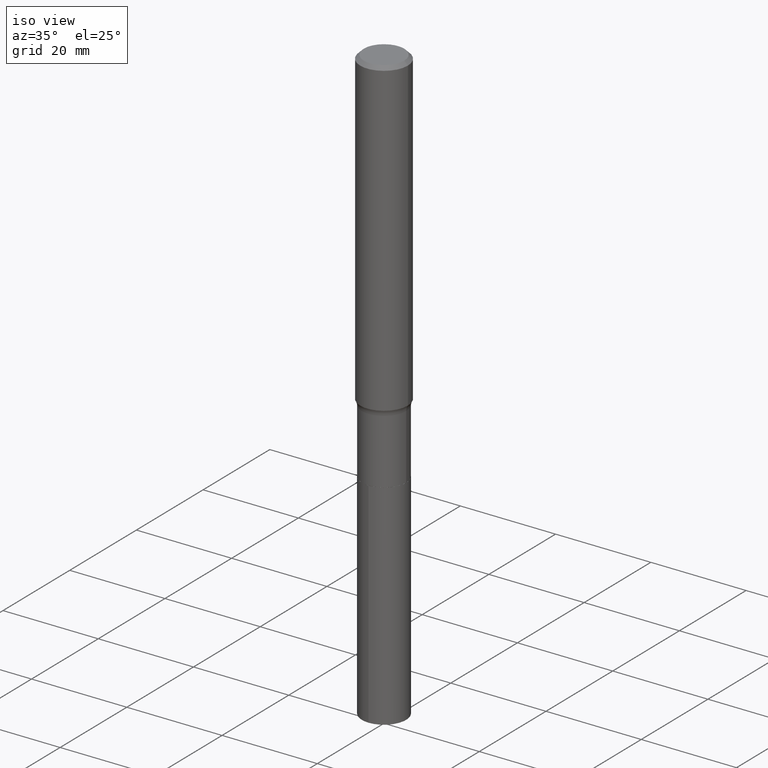
[diagram: clean part render]
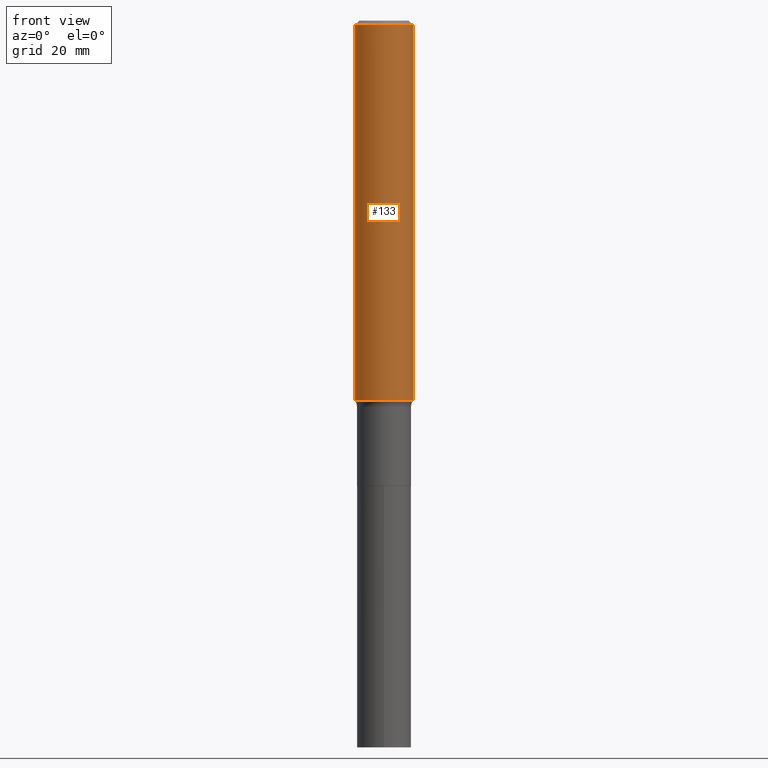
[diagram: tour spotlight — one face highlighted and labeled with its STEP entity id]
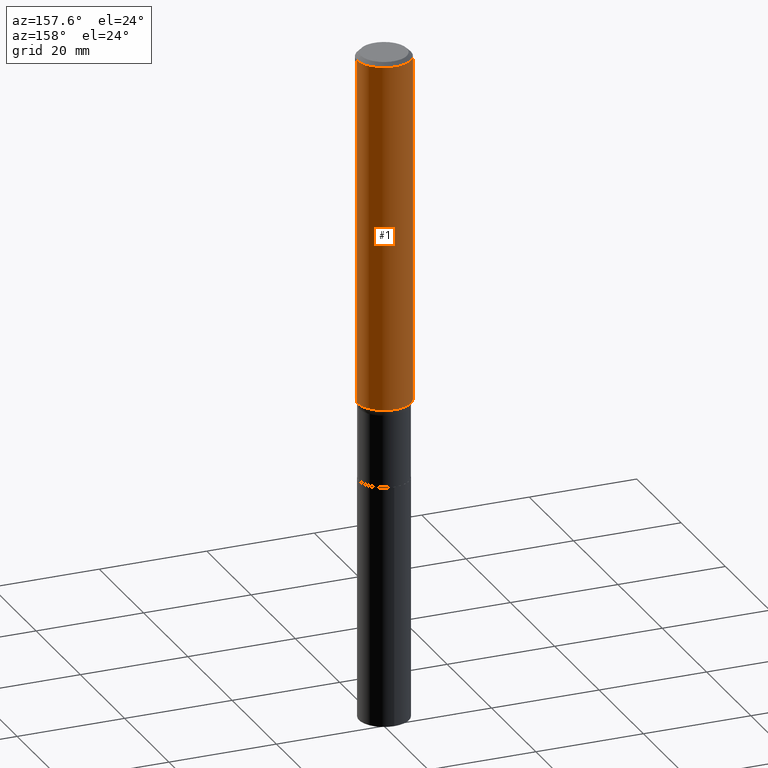
[diagram: tour spotlight — one face highlighted and labeled with its STEP entity id]
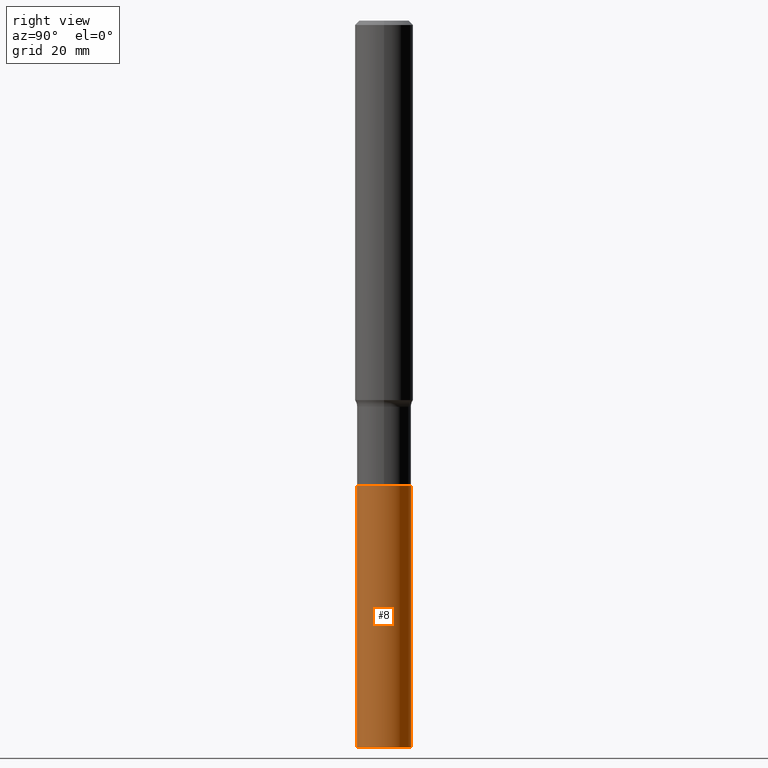
[diagram: tour spotlight — one face highlighted and labeled with its STEP entity id]
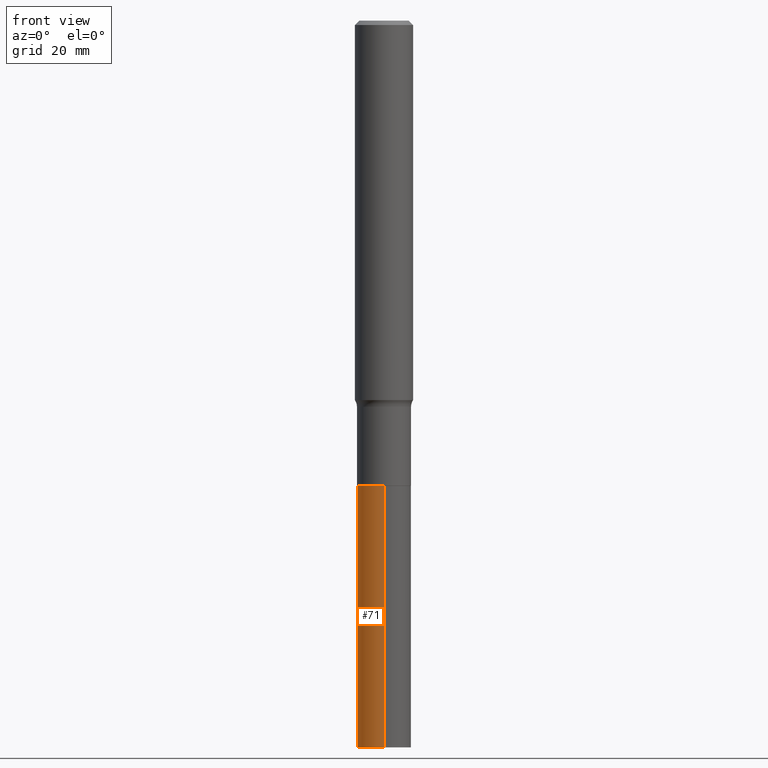
[diagram: tour spotlight — one face highlighted and labeled with its STEP entity id]
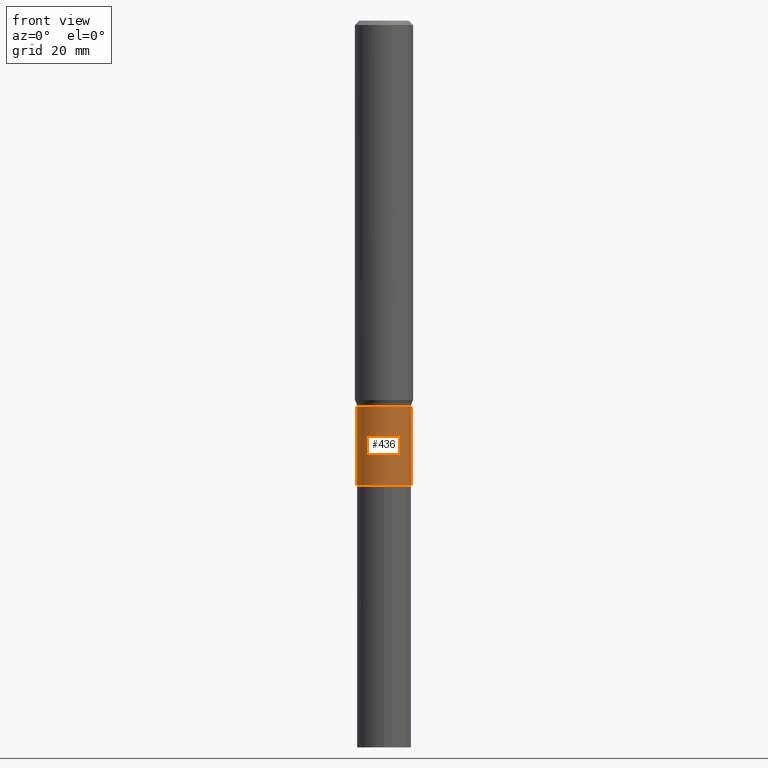
[diagram: tour spotlight — one face highlighted and labeled with its STEP entity id]
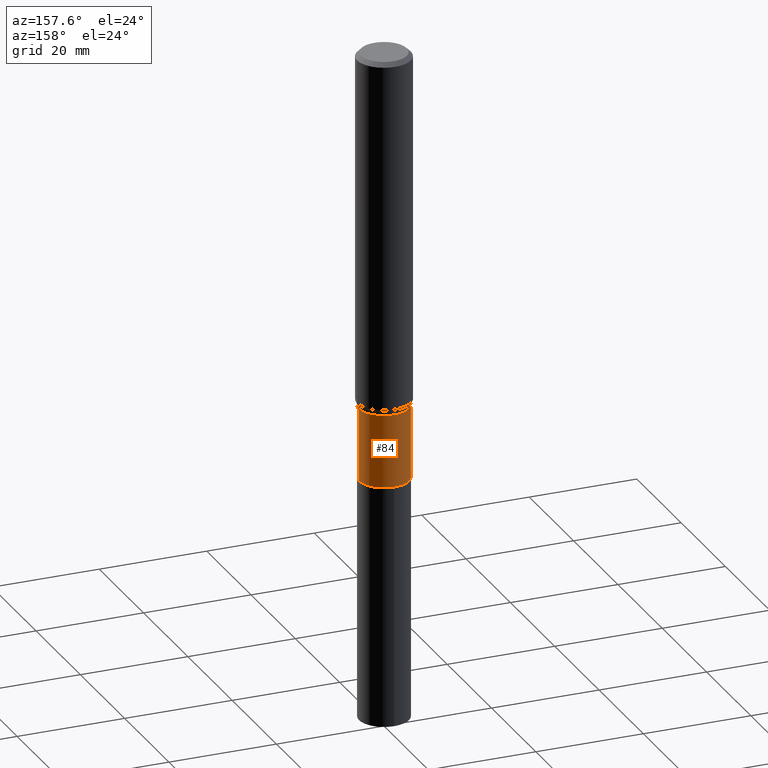
[diagram: tour spotlight — one face highlighted and labeled with its STEP entity id]
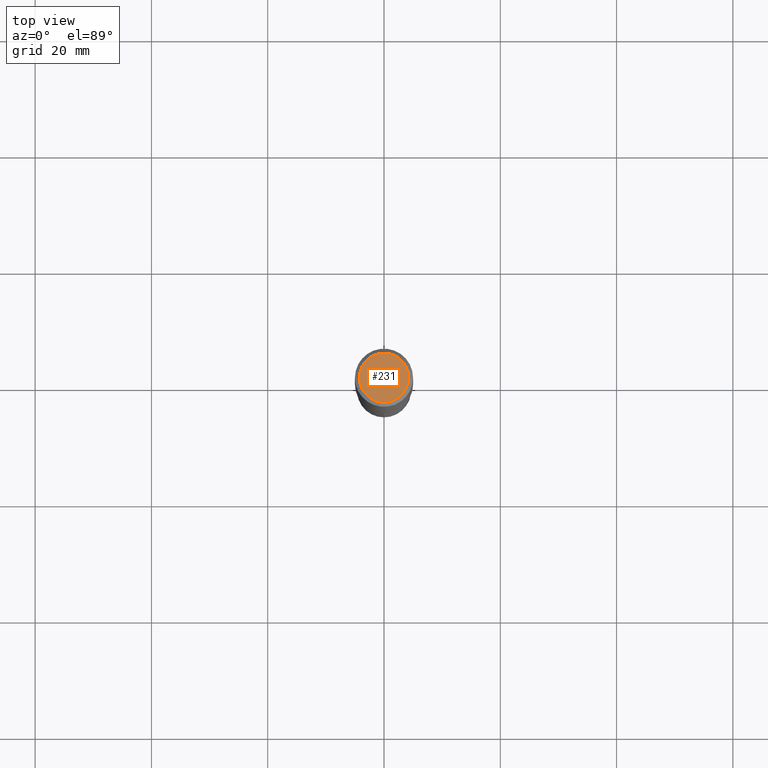
[diagram: tour spotlight — one face highlighted and labeled with its STEP entity id]
A machine part: a face-by-face anatomy tour. The part has 16 B-rep faces; the first image is the clean iso view, then the 7 largest visible faces are spotlighted one at a time (largest first), each with its STEP entity span.

Face 1 — front view, entity #133. In plain terms, the highlighted cylindrical surface (edge-blend (fillet) strip) has radius 5 mm, axis along (-0, 0, 1).
Definition (entity closure, byte-faithful):
#9 = CIRCLE ( 'NONE', #21, 0.1968500000000000250 ) ;
#11 = DIRECTION ( 'NONE',  ( -2.445468806185136877E-29, 3.491481338843145188E-15, 1.000000000000000000 ) ) ;
#16 = CYLINDRICAL_SURFACE ( 'NONE', #139, 0.1968500000000001915 ) ;
#19 = CIRCLE ( 'NONE', #55, 0.1968500000000003580 ) ;
#21 = AXIS2_PLACEMENT_3D ( 'NONE', #448, #376, #103 ) ;
#35 = EDGE_CURVE ( 'NONE', #461, #199, #179, .T. ) ;
#55 = AXIS2_PLACEMENT_3D ( 'NONE', #281, #163, #388 ) ;
#61 = EDGE_CURVE ( 'NONE', #126, #130, #299, .T. ) ;
#64 = DIRECTION ( 'NONE',  ( 1.000000000000000000, -6.982962677686266711E-15, 4.876176775795935793E-29 ) ) ;
#76 = CARTESIAN_POINT ( 'NONE',  ( -0.1968500000000000250, -3.138494505646045746E-15, -0.02952750000000017166 ) ) ;
#95 = CARTESIAN_POINT ( 'NONE',  ( 0.000000000000000000, 0.000000000000000000, 0.000000000000000000 ) ) ;
#103 = DIRECTION ( 'NONE',  ( 1.000000000000000000, -6.982962677686265922E-15, 0.000000000000000000 ) ) ;
#112 = EDGE_CURVE ( 'NONE', #199, #130, #9, .T. ) ;
#126 = VERTEX_POINT ( 'NONE', #438 ) ;
#130 = VERTEX_POINT ( 'NONE', #304 ) ;
#133 = ADVANCED_FACE ( 'NONE', ( #142 ), #16, .T. ) ;
#139 = AXIS2_PLACEMENT_3D ( 'NONE', #95, #396, #64 ) ;
#142 = FACE_OUTER_BOUND ( 'NONE', #276, .T. ) ;
#160 = ORIENTED_EDGE ( 'NONE', *, *, #35, .F. ) ;
#163 = DIRECTION ( 'NONE',  ( -2.445468806185136597E-29, 3.491481338843145583E-15, 1.000000000000000000 ) ) ;
#166 = CARTESIAN_POINT ( 'NONE',  ( -0.1968500000000003858, -7.572597671403159960E-15, -2.569482742737338121 ) ) ;
#179 = LINE ( 'NONE', #337, #250 ) ;
#183 = ORIENTED_EDGE ( 'NONE', *, *, #61, .T. ) ;
#199 = VERTEX_POINT ( 'NONE', #76 ) ;
#214 = ORIENTED_EDGE ( 'NONE', *, *, #387, .T. ) ;
#250 = VECTOR ( 'NONE', #11, 39.37007874015748143 ) ;
#274 = CARTESIAN_POINT ( 'NONE',  ( 0.1968500000000001915, -1.374596203102542989E-15, 9.598753983154309266E-30 ) ) ;
#276 = EDGE_LOOP ( 'NONE', ( #160, #214, #183, #284 ) ) ;
#281 = CARTESIAN_POINT ( 'NONE',  ( 6.283589895395188928E-29, -8.971301046746920115E-15, -2.569482742737338121 ) ) ;
#284 = ORIENTED_EDGE ( 'NONE', *, *, #112, .F. ) ;
#299 = LINE ( 'NONE', #274, #429 ) ;
#304 = CARTESIAN_POINT ( 'NONE',  ( 0.1968500000000000250, -1.477690918335233294E-15, -0.02952750000000017166 ) ) ;
#337 = CARTESIAN_POINT ( 'NONE',  ( -0.1968500000000001915, 1.398703375343758577E-15, -9.682923725166790684E-30 ) ) ;
#376 = DIRECTION ( 'NONE',  ( -2.445468806185136597E-29, 3.491481338843145583E-15, 1.000000000000000000 ) ) ;
#387 = EDGE_CURVE ( 'NONE', #461, #126, #19, .T. ) ;
#388 = DIRECTION ( 'NONE',  ( 1.000000000000000000, -6.982962677686265922E-15, 0.000000000000000000 ) ) ;
#396 = DIRECTION ( 'NONE',  ( -2.445468806185136597E-29, 3.491481338843145583E-15, 1.000000000000000000 ) ) ;
#429 = VECTOR ( 'NONE', #453, 39.37007874015748143 ) ;
#438 = CARTESIAN_POINT ( 'NONE',  ( 0.1968500000000003858, -1.034589724984946488E-14, -2.569482742737338121 ) ) ;
#448 = CARTESIAN_POINT ( 'NONE',  ( 7.220858017463204230E-31, -1.030947152326915870E-16, -0.02952750000000017166 ) ) ;
#453 = DIRECTION ( 'NONE',  ( -2.445468806185136877E-29, 3.491481338843145188E-15, 1.000000000000000000 ) ) ;
#461 = VERTEX_POINT ( 'NONE', #166 ) ;

Face 2 — auxiliary view, entity #1. In plain terms, the highlighted cylindrical surface (edge-blend (fillet) strip) has radius 5 mm, axis along (-0, 0, 1).
Definition (entity closure, byte-faithful):
#1 = ADVANCED_FACE ( 'NONE', ( #260 ), #305, .T. ) ;
#11 = DIRECTION ( 'NONE',  ( -2.445468806185136877E-29, 3.491481338843145188E-15, 1.000000000000000000 ) ) ;
#17 = ORIENTED_EDGE ( 'NONE', *, *, #61, .F. ) ;
#18 = EDGE_CURVE ( 'NONE', #126, #461, #317, .T. ) ;
#35 = EDGE_CURVE ( 'NONE', #461, #199, #179, .T. ) ;
#45 = DIRECTION ( 'NONE',  ( -2.445468806185136597E-29, 3.491481338843145583E-15, 1.000000000000000000 ) ) ;
#61 = EDGE_CURVE ( 'NONE', #126, #130, #299, .T. ) ;
#67 = CARTESIAN_POINT ( 'NONE',  ( 0.000000000000000000, 0.000000000000000000, 0.000000000000000000 ) ) ;
#76 = CARTESIAN_POINT ( 'NONE',  ( -0.1968500000000000250, -3.138494505646045746E-15, -0.02952750000000017166 ) ) ;
#96 = DIRECTION ( 'NONE',  ( 1.000000000000000000, -6.982962677686266711E-15, 4.876176775795935793E-29 ) ) ;
#102 = CARTESIAN_POINT ( 'NONE',  ( 7.220858017463204230E-31, -1.030947152326915870E-16, -0.02952750000000017166 ) ) ;
#115 = AXIS2_PLACEMENT_3D ( 'NONE', #102, #256, #404 ) ;
#120 = AXIS2_PLACEMENT_3D ( 'NONE', #67, #45, #96 ) ;
#126 = VERTEX_POINT ( 'NONE', #438 ) ;
#130 = VERTEX_POINT ( 'NONE', #304 ) ;
#166 = CARTESIAN_POINT ( 'NONE',  ( -0.1968500000000003858, -7.572597671403159960E-15, -2.569482742737338121 ) ) ;
#176 = DIRECTION ( 'NONE',  ( -2.445468806185136597E-29, 3.491481338843145583E-15, 1.000000000000000000 ) ) ;
#179 = LINE ( 'NONE', #337, #250 ) ;
#199 = VERTEX_POINT ( 'NONE', #76 ) ;
#250 = VECTOR ( 'NONE', #11, 39.37007874015748143 ) ;
#256 = DIRECTION ( 'NONE',  ( -2.445468806185136597E-29, 3.491481338843145583E-15, 1.000000000000000000 ) ) ;
#260 = FACE_OUTER_BOUND ( 'NONE', #373, .T. ) ;
#270 = CIRCLE ( 'NONE', #115, 0.1968500000000000250 ) ;
#274 = CARTESIAN_POINT ( 'NONE',  ( 0.1968500000000001915, -1.374596203102542989E-15, 9.598753983154309266E-30 ) ) ;
#279 = ORIENTED_EDGE ( 'NONE', *, *, #18, .T. ) ;
#294 = DIRECTION ( 'NONE',  ( 1.000000000000000000, -6.982962677686265922E-15, 0.000000000000000000 ) ) ;
#299 = LINE ( 'NONE', #274, #429 ) ;
#302 = ORIENTED_EDGE ( 'NONE', *, *, #35, .T. ) ;
#304 = CARTESIAN_POINT ( 'NONE',  ( 0.1968500000000000250, -1.477690918335233294E-15, -0.02952750000000017166 ) ) ;
#305 = CYLINDRICAL_SURFACE ( 'NONE', #120, 0.1968500000000001915 ) ;
#308 = EDGE_CURVE ( 'NONE', #130, #199, #270, .T. ) ;
#317 = CIRCLE ( 'NONE', #346, 0.1968500000000003580 ) ;
#337 = CARTESIAN_POINT ( 'NONE',  ( -0.1968500000000001915, 1.398703375343758577E-15, -9.682923725166790684E-30 ) ) ;
#346 = AXIS2_PLACEMENT_3D ( 'NONE', #439, #176, #294 ) ;
#373 = EDGE_LOOP ( 'NONE', ( #279, #302, #428, #17 ) ) ;
#404 = DIRECTION ( 'NONE',  ( 1.000000000000000000, -6.982962677686265922E-15, 0.000000000000000000 ) ) ;
#428 = ORIENTED_EDGE ( 'NONE', *, *, #308, .F. ) ;
#429 = VECTOR ( 'NONE', #453, 39.37007874015748143 ) ;
#438 = CARTESIAN_POINT ( 'NONE',  ( 0.1968500000000003858, -1.034589724984946488E-14, -2.569482742737338121 ) ) ;
#439 = CARTESIAN_POINT ( 'NONE',  ( 6.283589895395188928E-29, -8.971301046746920115E-15, -2.569482742737338121 ) ) ;
#453 = DIRECTION ( 'NONE',  ( -2.445468806185136877E-29, 3.491481338843145188E-15, 1.000000000000000000 ) ) ;
#461 = VERTEX_POINT ( 'NONE', #166 ) ;

Face 3 — right view, entity #8. In plain terms, the highlighted cylindrical surface (edge-blend (fillet) strip) has radius 4.6495 mm, axis along (-0, 0, 1).
Definition (entity closure, byte-faithful):
#4 = CYLINDRICAL_SURFACE ( 'NONE', #295, 0.1830499999999999905 ) ;
#5 = CARTESIAN_POINT ( 'NONE',  ( 1.203488073211193522E-28, -1.718263413532219501E-14, -4.921300000000000452 ) ) ;
#6 = VERTEX_POINT ( 'NONE', #49 ) ;
#8 = ADVANCED_FACE ( 'NONE', ( #367 ), #4, .T. ) ;
#24 = DIRECTION ( 'NONE',  ( -6.982962677686264344E-15, -1.000000000000000000, 2.984810700534567995E-15 ) ) ;
#47 = CARTESIAN_POINT ( 'NONE',  ( 1.300648477808961733E-15, 0.1830499999999828098, -4.921300000000002228 ) ) ;
#49 = CARTESIAN_POINT ( 'NONE',  ( -1.278231318150350366E-15, -0.1830500000000171434, -4.921299999999999564 ) ) ;
#73 = CIRCLE ( 'NONE', #339, 0.1830499999999999905 ) ;
#87 = ORIENTED_EDGE ( 'NONE', *, *, #197, .T. ) ;
#105 = LINE ( 'NONE', #219, #296 ) ;
#122 = VERTEX_POINT ( 'NONE', #47 ) ;
#136 = DIRECTION ( 'NONE',  ( -2.445466038822281652E-29, 3.491485301864262044E-15, 1.000000000000000000 ) ) ;
#150 = CIRCLE ( 'NONE', #207, 0.1830499999999999905 ) ;
#172 = CARTESIAN_POINT ( 'NONE',  ( 1.300648477808983624E-15, 0.1830499999999889715, -3.149300000000000210 ) ) ;
#173 = CARTESIAN_POINT ( 'NONE',  ( 7.701514911318850358E-29, -1.099572218041871704E-14, -3.149299999999999766 ) ) ;
#197 = EDGE_CURVE ( 'NONE', #122, #255, #312, .T. ) ;
#200 = DIRECTION ( 'NONE',  ( -6.982962677686264344E-15, -1.000000000000000000, 5.969621401069135991E-15 ) ) ;
#207 = AXIS2_PLACEMENT_3D ( 'NONE', #173, #435, #24 ) ;
#217 = ORIENTED_EDGE ( 'NONE', *, *, #316, .F. ) ;
#219 = CARTESIAN_POINT ( 'NONE',  ( -1.278231318150393753E-15, -0.1830500000000109817, -3.149299999999999322 ) ) ;
#225 = VERTEX_POINT ( 'NONE', #363 ) ;
#249 = EDGE_LOOP ( 'NONE', ( #462, #87, #426, #217 ) ) ;
#255 = VERTEX_POINT ( 'NONE', #172 ) ;
#287 = DIRECTION ( 'NONE',  ( -2.445466038822281652E-29, 3.491485301864262439E-15, 1.000000000000000000 ) ) ;
#292 = DIRECTION ( 'NONE',  ( -6.982962677686264344E-15, -1.000000000000000000, 2.984810700534567995E-15 ) ) ;
#295 = AXIS2_PLACEMENT_3D ( 'NONE', #369, #136, #292 ) ;
#296 = VECTOR ( 'NONE', #287, 39.37007874015748143 ) ;
#312 = LINE ( 'NONE', #451, #398 ) ;
#316 = EDGE_CURVE ( 'NONE', #6, #225, #105, .T. ) ;
#339 = AXIS2_PLACEMENT_3D ( 'NONE', #5, #432, #200 ) ;
#349 = EDGE_CURVE ( 'NONE', #225, #255, #150, .T. ) ;
#353 = EDGE_CURVE ( 'NONE', #6, #122, #73, .T. ) ;
#363 = CARTESIAN_POINT ( 'NONE',  ( -1.278231318150393753E-15, -0.1830500000000109817, -3.149299999999999322 ) ) ;
#367 = FACE_OUTER_BOUND ( 'NONE', #249, .T. ) ;
#369 = CARTESIAN_POINT ( 'NONE',  ( 7.701514911318850358E-29, -1.099572218041871704E-14, -3.149299999999999766 ) ) ;
#398 = VECTOR ( 'NONE', #454, 39.37007874015748143 ) ;
#426 = ORIENTED_EDGE ( 'NONE', *, *, #349, .F. ) ;
#432 = DIRECTION ( 'NONE',  ( -2.445466038822281652E-29, 3.491485301864262044E-15, 1.000000000000000000 ) ) ;
#435 = DIRECTION ( 'NONE',  ( -2.445466038822281652E-29, 3.491485301864262044E-15, 1.000000000000000000 ) ) ;
#451 = CARTESIAN_POINT ( 'NONE',  ( 1.300648477808939842E-15, 0.1830499999999889715, -3.149300000000000210 ) ) ;
#454 = DIRECTION ( 'NONE',  ( -2.445466038822281652E-29, 3.491485301864262439E-15, 1.000000000000000000 ) ) ;
#462 = ORIENTED_EDGE ( 'NONE', *, *, #353, .T. ) ;

Face 4 — front view, entity #71. In plain terms, the highlighted cylindrical surface (edge-blend (fillet) strip) has radius 4.6495 mm, axis along (-0, 0, 1).
Definition (entity closure, byte-faithful):
#6 = VERTEX_POINT ( 'NONE', #49 ) ;
#15 = ORIENTED_EDGE ( 'NONE', *, *, #197, .F. ) ;
#37 = ORIENTED_EDGE ( 'NONE', *, *, #316, .T. ) ;
#44 = AXIS2_PLACEMENT_3D ( 'NONE', #427, #170, #243 ) ;
#47 = CARTESIAN_POINT ( 'NONE',  ( 1.300648477808961733E-15, 0.1830499999999828098, -4.921300000000002228 ) ) ;
#49 = CARTESIAN_POINT ( 'NONE',  ( -1.278231318150350366E-15, -0.1830500000000171434, -4.921299999999999564 ) ) ;
#51 = AXIS2_PLACEMENT_3D ( 'NONE', #83, #457, #464 ) ;
#71 = ADVANCED_FACE ( 'NONE', ( #417 ), #158, .T. ) ;
#83 = CARTESIAN_POINT ( 'NONE',  ( 7.701514911318850358E-29, -1.099572218041871704E-14, -3.149299999999999766 ) ) ;
#105 = LINE ( 'NONE', #219, #296 ) ;
#122 = VERTEX_POINT ( 'NONE', #47 ) ;
#129 = CIRCLE ( 'NONE', #44, 0.1830499999999999905 ) ;
#158 = CYLINDRICAL_SURFACE ( 'NONE', #51, 0.1830499999999999905 ) ;
#169 = EDGE_CURVE ( 'NONE', #122, #6, #443, .T. ) ;
#170 = DIRECTION ( 'NONE',  ( -2.445466038822281652E-29, 3.491485301864262044E-15, 1.000000000000000000 ) ) ;
#172 = CARTESIAN_POINT ( 'NONE',  ( 1.300648477808983624E-15, 0.1830499999999889715, -3.149300000000000210 ) ) ;
#197 = EDGE_CURVE ( 'NONE', #122, #255, #312, .T. ) ;
#210 = EDGE_LOOP ( 'NONE', ( #15, #420, #37, #362 ) ) ;
#219 = CARTESIAN_POINT ( 'NONE',  ( -1.278231318150393753E-15, -0.1830500000000109817, -3.149299999999999322 ) ) ;
#225 = VERTEX_POINT ( 'NONE', #363 ) ;
#242 = AXIS2_PLACEMENT_3D ( 'NONE', #412, #350, #269 ) ;
#243 = DIRECTION ( 'NONE',  ( -6.982962677686264344E-15, -1.000000000000000000, 2.984810700534567995E-15 ) ) ;
#255 = VERTEX_POINT ( 'NONE', #172 ) ;
#269 = DIRECTION ( 'NONE',  ( -6.982962677686264344E-15, -1.000000000000000000, 5.969621401069135991E-15 ) ) ;
#287 = DIRECTION ( 'NONE',  ( -2.445466038822281652E-29, 3.491485301864262439E-15, 1.000000000000000000 ) ) ;
#296 = VECTOR ( 'NONE', #287, 39.37007874015748143 ) ;
#312 = LINE ( 'NONE', #451, #398 ) ;
#316 = EDGE_CURVE ( 'NONE', #6, #225, #105, .T. ) ;
#350 = DIRECTION ( 'NONE',  ( -2.445466038822281652E-29, 3.491485301864262044E-15, 1.000000000000000000 ) ) ;
#362 = ORIENTED_EDGE ( 'NONE', *, *, #393, .F. ) ;
#363 = CARTESIAN_POINT ( 'NONE',  ( -1.278231318150393753E-15, -0.1830500000000109817, -3.149299999999999322 ) ) ;
#393 = EDGE_CURVE ( 'NONE', #255, #225, #129, .T. ) ;
#398 = VECTOR ( 'NONE', #454, 39.37007874015748143 ) ;
#412 = CARTESIAN_POINT ( 'NONE',  ( 1.203488073211193522E-28, -1.718263413532219501E-14, -4.921300000000000452 ) ) ;
#417 = FACE_OUTER_BOUND ( 'NONE', #210, .T. ) ;
#420 = ORIENTED_EDGE ( 'NONE', *, *, #169, .T. ) ;
#427 = CARTESIAN_POINT ( 'NONE',  ( 7.701514911318850358E-29, -1.099572218041871704E-14, -3.149299999999999766 ) ) ;
#443 = CIRCLE ( 'NONE', #242, 0.1830499999999999905 ) ;
#451 = CARTESIAN_POINT ( 'NONE',  ( 1.300648477808939842E-15, 0.1830499999999889715, -3.149300000000000210 ) ) ;
#454 = DIRECTION ( 'NONE',  ( -2.445466038822281652E-29, 3.491485301864262439E-15, 1.000000000000000000 ) ) ;
#457 = DIRECTION ( 'NONE',  ( -2.445466038822281652E-29, 3.491485301864262044E-15, 1.000000000000000000 ) ) ;
#464 = DIRECTION ( 'NONE',  ( -6.982962677686264344E-15, -1.000000000000000000, 2.984810700534567995E-15 ) ) ;

Face 5 — front view, entity #436. In plain terms, the highlighted cylindrical surface (edge-blend (fillet) strip) has radius 4.6495 mm, axis along (-0, 0, 1).
Definition (entity closure, byte-faithful):
#22 = VECTOR ( 'NONE', #406, 39.37007874015748143 ) ;
#28 = CARTESIAN_POINT ( 'NONE',  ( 0.000000000000000000, 0.000000000000000000, 0.000000000000000000 ) ) ;
#36 = DIRECTION ( 'NONE',  ( 1.000000000000000000, -6.982962677686263555E-15, 0.000000000000000000 ) ) ;
#41 = VERTEX_POINT ( 'NONE', #143 ) ;
#50 = DIRECTION ( 'NONE',  ( 1.000000000000000000, -6.982962677686262766E-15, 0.000000000000000000 ) ) ;
#56 = AXIS2_PLACEMENT_3D ( 'NONE', #118, #226, #50 ) ;
#88 = VERTEX_POINT ( 'NONE', #291 ) ;
#93 = DIRECTION ( 'NONE',  ( 1.000000000000000000, -6.982962677686266711E-15, 4.876176775795935232E-29 ) ) ;
#97 = CYLINDRICAL_SURFACE ( 'NONE', #100, 0.1830499999999999072 ) ;
#100 = AXIS2_PLACEMENT_3D ( 'NONE', #28, #205, #93 ) ;
#113 = CARTESIAN_POINT ( 'NONE',  ( 6.393433646890419314E-29, -9.128128812271516003E-15, -2.614399999999999391 ) ) ;
#118 = CARTESIAN_POINT ( 'NONE',  ( 7.700292176915756435E-29, -1.099397643974929475E-14, -3.148799999999999599 ) ) ;
#143 = CARTESIAN_POINT ( 'NONE',  ( -0.1830499999999999350, -8.760404148201544025E-15, -3.148799999999999599 ) ) ;
#147 = VERTEX_POINT ( 'NONE', #334 ) ;
#164 = AXIS2_PLACEMENT_3D ( 'NONE', #113, #282, #36 ) ;
#167 = ORIENTED_EDGE ( 'NONE', *, *, #324, .T. ) ;
#182 = CARTESIAN_POINT ( 'NONE',  ( 0.1830499999999999072, -1.278231318150470470E-15, 8.925841588094455250E-30 ) ) ;
#190 = CIRCLE ( 'NONE', #164, 0.1830499999999999072 ) ;
#205 = DIRECTION ( 'NONE',  ( -2.445468806185136597E-29, 3.491481338843145583E-15, 1.000000000000000000 ) ) ;
#216 = LINE ( 'NONE', #182, #22 ) ;
#223 = EDGE_CURVE ( 'NONE', #147, #88, #190, .T. ) ;
#226 = DIRECTION ( 'NONE',  ( -2.445468806185136597E-29, 3.491481338843145583E-15, 1.000000000000000000 ) ) ;
#239 = ORIENTED_EDGE ( 'NONE', *, *, #264, .F. ) ;
#263 = VERTEX_POINT ( 'NONE', #297 ) ;
#264 = EDGE_CURVE ( 'NONE', #41, #147, #371, .T. ) ;
#282 = DIRECTION ( 'NONE',  ( -2.445468806185136597E-29, 3.491481338843145583E-15, 1.000000000000000000 ) ) ;
#288 = FACE_OUTER_BOUND ( 'NONE', #408, .T. ) ;
#291 = CARTESIAN_POINT ( 'NONE',  ( 0.1830499999999999072, -1.040636013042198588E-14, -2.614399999999999391 ) ) ;
#297 = CARTESIAN_POINT ( 'NONE',  ( 0.1830499999999999350, -1.227220775789976463E-14, -3.148799999999999599 ) ) ;
#310 = EDGE_CURVE ( 'NONE', #263, #88, #216, .T. ) ;
#324 = EDGE_CURVE ( 'NONE', #41, #263, #468, .T. ) ;
#330 = DIRECTION ( 'NONE',  ( -2.445468806185136877E-29, 3.491481338843145188E-15, 1.000000000000000000 ) ) ;
#334 = CARTESIAN_POINT ( 'NONE',  ( -0.1830499999999999072, -8.760404148201544025E-15, -2.614399999999999391 ) ) ;
#335 = ORIENTED_EDGE ( 'NONE', *, *, #310, .T. ) ;
#336 = CARTESIAN_POINT ( 'NONE',  ( -0.1830499999999999072, 1.300648477808862731E-15, -9.004110682711601185E-30 ) ) ;
#338 = VECTOR ( 'NONE', #330, 39.37007874015748143 ) ;
#371 = LINE ( 'NONE', #336, #338 ) ;
#406 = DIRECTION ( 'NONE',  ( -2.445468806185136877E-29, 3.491481338843145188E-15, 1.000000000000000000 ) ) ;
#408 = EDGE_LOOP ( 'NONE', ( #239, #167, #335, #424 ) ) ;
#424 = ORIENTED_EDGE ( 'NONE', *, *, #223, .F. ) ;
#436 = ADVANCED_FACE ( 'NONE', ( #288 ), #97, .T. ) ;
#468 = CIRCLE ( 'NONE', #56, 0.1830499999999999350 ) ;

Face 6 — auxiliary view, entity #84. In plain terms, the highlighted cylindrical surface (edge-blend (fillet) strip) has radius 4.6495 mm, axis along (-0, 0, 1).
Definition (entity closure, byte-faithful):
#13 = CARTESIAN_POINT ( 'NONE',  ( 7.700292176915756435E-29, -1.099397643974929475E-14, -3.148799999999999599 ) ) ;
#14 = DIRECTION ( 'NONE',  ( -2.445468806185136597E-29, 3.491481338843145583E-15, 1.000000000000000000 ) ) ;
#22 = VECTOR ( 'NONE', #406, 39.37007874015748143 ) ;
#41 = VERTEX_POINT ( 'NONE', #143 ) ;
#48 = ORIENTED_EDGE ( 'NONE', *, *, #313, .T. ) ;
#54 = DIRECTION ( 'NONE',  ( 1.000000000000000000, -6.982962677686263555E-15, 0.000000000000000000 ) ) ;
#69 = CARTESIAN_POINT ( 'NONE',  ( 0.000000000000000000, 0.000000000000000000, 0.000000000000000000 ) ) ;
#84 = ADVANCED_FACE ( 'NONE', ( #186 ), #342, .T. ) ;
#88 = VERTEX_POINT ( 'NONE', #291 ) ;
#109 = ORIENTED_EDGE ( 'NONE', *, *, #455, .F. ) ;
#143 = CARTESIAN_POINT ( 'NONE',  ( -0.1830499999999999350, -8.760404148201544025E-15, -3.148799999999999599 ) ) ;
#144 = DIRECTION ( 'NONE',  ( -2.445468806185136597E-29, 3.491481338843145583E-15, 1.000000000000000000 ) ) ;
#147 = VERTEX_POINT ( 'NONE', #334 ) ;
#148 = EDGE_LOOP ( 'NONE', ( #48, #447, #109, #377 ) ) ;
#182 = CARTESIAN_POINT ( 'NONE',  ( 0.1830499999999999072, -1.278231318150470470E-15, 8.925841588094455250E-30 ) ) ;
#186 = FACE_OUTER_BOUND ( 'NONE', #148, .T. ) ;
#216 = LINE ( 'NONE', #182, #22 ) ;
#220 = DIRECTION ( 'NONE',  ( 1.000000000000000000, -6.982962677686266711E-15, 4.876176775795935232E-29 ) ) ;
#241 = CARTESIAN_POINT ( 'NONE',  ( 6.393433646890419314E-29, -9.128128812271516003E-15, -2.614399999999999391 ) ) ;
#251 = AXIS2_PLACEMENT_3D ( 'NONE', #241, #366, #54 ) ;
#263 = VERTEX_POINT ( 'NONE', #297 ) ;
#264 = EDGE_CURVE ( 'NONE', #41, #147, #371, .T. ) ;
#268 = AXIS2_PLACEMENT_3D ( 'NONE', #69, #14, #220 ) ;
#291 = CARTESIAN_POINT ( 'NONE',  ( 0.1830499999999999072, -1.040636013042198588E-14, -2.614399999999999391 ) ) ;
#297 = CARTESIAN_POINT ( 'NONE',  ( 0.1830499999999999350, -1.227220775789976463E-14, -3.148799999999999599 ) ) ;
#300 = DIRECTION ( 'NONE',  ( 1.000000000000000000, -6.982962677686262766E-15, 0.000000000000000000 ) ) ;
#310 = EDGE_CURVE ( 'NONE', #263, #88, #216, .T. ) ;
#313 = EDGE_CURVE ( 'NONE', #263, #41, #327, .T. ) ;
#327 = CIRCLE ( 'NONE', #365, 0.1830499999999999350 ) ;
#330 = DIRECTION ( 'NONE',  ( -2.445468806185136877E-29, 3.491481338843145188E-15, 1.000000000000000000 ) ) ;
#334 = CARTESIAN_POINT ( 'NONE',  ( -0.1830499999999999072, -8.760404148201544025E-15, -2.614399999999999391 ) ) ;
#336 = CARTESIAN_POINT ( 'NONE',  ( -0.1830499999999999072, 1.300648477808862731E-15, -9.004110682711601185E-30 ) ) ;
#338 = VECTOR ( 'NONE', #330, 39.37007874015748143 ) ;
#342 = CYLINDRICAL_SURFACE ( 'NONE', #268, 0.1830499999999999072 ) ;
#347 = CIRCLE ( 'NONE', #251, 0.1830499999999999072 ) ;
#365 = AXIS2_PLACEMENT_3D ( 'NONE', #13, #144, #300 ) ;
#366 = DIRECTION ( 'NONE',  ( -2.445468806185136597E-29, 3.491481338843145583E-15, 1.000000000000000000 ) ) ;
#371 = LINE ( 'NONE', #336, #338 ) ;
#377 = ORIENTED_EDGE ( 'NONE', *, *, #310, .F. ) ;
#406 = DIRECTION ( 'NONE',  ( -2.445468806185136877E-29, 3.491481338843145188E-15, 1.000000000000000000 ) ) ;
#447 = ORIENTED_EDGE ( 'NONE', *, *, #264, .T. ) ;
#455 = EDGE_CURVE ( 'NONE', #88, #147, #347, .T. ) ;

Face 7 — top view, entity #231. In plain terms, the highlighted planar face has unit normal (0, -0, -1).
Definition (entity closure, byte-faithful):
#43 = CARTESIAN_POINT ( 'NONE',  ( 0.1673224999999999851, -1.300749711163072397E-15, 4.096137381456741925E-18 ) ) ;
#53 = AXIS2_PLACEMENT_3D ( 'NONE', #138, #131, #400 ) ;
#80 = CIRCLE ( 'NONE', #180, 0.1673224999999999851 ) ;
#81 = EDGE_CURVE ( 'NONE', #128, #137, #80, .T. ) ;
#92 = DIRECTION ( 'NONE',  ( 1.000000000000000000, -6.982962677686267499E-15, 4.876294436782262290E-29 ) ) ;
#128 = VERTEX_POINT ( 'NONE', #43 ) ;
#131 = DIRECTION ( 'NONE',  ( 2.438088387897960049E-29, -3.491481338843145188E-15, -1.000000000000000000 ) ) ;
#132 = DIRECTION ( 'NONE',  ( -2.445468806185136597E-29, 3.491481338843145583E-15, 1.000000000000000000 ) ) ;
#135 = DIRECTION ( 'NONE',  ( 1.000000000000000000, -6.982962677686267499E-15, 4.876294436782262290E-29 ) ) ;
#137 = VERTEX_POINT ( 'NONE', #145 ) ;
#138 = CARTESIAN_POINT ( 'NONE',  ( -5.008488096090108951E-47, 7.150793614331948590E-33, 2.048068690724054183E-18 ) ) ;
#145 = CARTESIAN_POINT ( 'NONE',  ( -0.1673224999999999851, 1.219954130253505263E-15, 4.096137381439757534E-18 ) ) ;
#175 = DIRECTION ( 'NONE',  ( -2.445468806185136597E-29, 3.491481338843145583E-15, 1.000000000000000000 ) ) ;
#180 = AXIS2_PLACEMENT_3D ( 'NONE', #331, #175, #135 ) ;
#185 = FACE_OUTER_BOUND ( 'NONE', #357, .T. ) ;
#194 = AXIS2_PLACEMENT_3D ( 'NONE', #329, #132, #92 ) ;
#231 = ADVANCED_FACE ( 'NONE', ( #185 ), #253, .F. ) ;
#253 = PLANE ( 'NONE',  #53 ) ;
#329 = CARTESIAN_POINT ( 'NONE',  ( -1.001697619218021790E-46, 1.430158722866389718E-32, 4.096137381448108366E-18 ) ) ;
#331 = CARTESIAN_POINT ( 'NONE',  ( -1.001697619218021790E-46, 1.430158722866389718E-32, 4.096137381448108366E-18 ) ) ;
#357 = EDGE_LOOP ( 'NONE', ( #370, #389 ) ) ;
#370 = ORIENTED_EDGE ( 'NONE', *, *, #403, .T. ) ;
#384 = CIRCLE ( 'NONE', #194, 0.1673224999999999851 ) ;
#389 = ORIENTED_EDGE ( 'NONE', *, *, #81, .T. ) ;
#400 = DIRECTION ( 'NONE',  ( -1.000000000000000000, 6.982962677686265922E-15, -4.876176775795935793E-29 ) ) ;
#403 = EDGE_CURVE ( 'NONE', #137, #128, #384, .T. ) ;